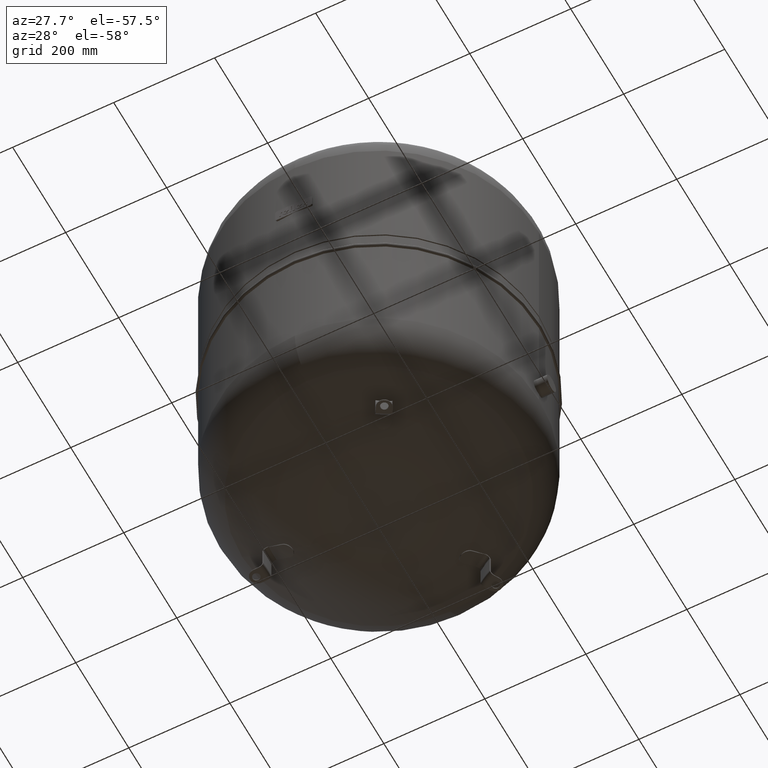
[diagram: clean part render]
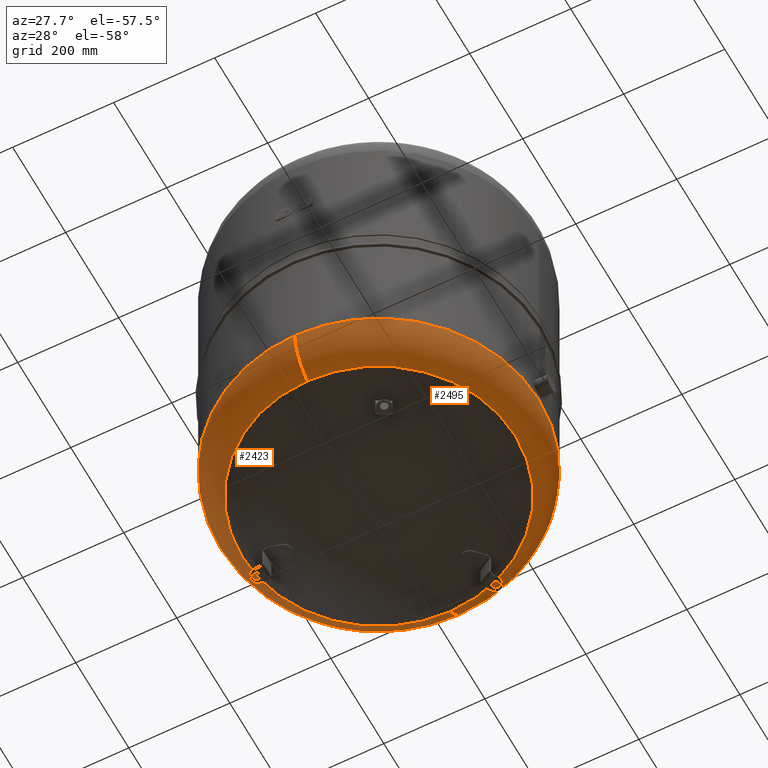
[diagram: same view with one multi-face feature highlighted, each face labeled with its STEP entity id]
A machine part, auxiliary view. The highlighted faces form ONE feature: a constant-radius fillet chain: 2 tangent blend faces with common blend radius 99 mm. The faces share edges in the B-rep.
Their STEP definitions:
[1] entity #2495 (Torus):
#2345=CARTESIAN_POINT('',(317.0,9.105293E-015,169.75944937262864));
#2346=VERTEX_POINT('',#2345);
#2353=CARTESIAN_POINT('',(-3.882002E-014,317.0,169.75944937262869));
#2354=VERTEX_POINT('',#2353);
#2355=CARTESIAN_POINT('',(-1.556097E-014,-2.971473E-014,169.75944937262864));
#2356=DIRECTION('',(0.0,0.0,1.0));
#2357=DIRECTION('',(-1.0,0.0,0.0));
#2358=AXIS2_PLACEMENT_3D('',#2355,#2356,#2357);
#2359=CIRCLE('',#2358,317.00000000000006);
#2360=EDGE_CURVE('',#2346,#2354,#2359,.T.);
#2377=CARTESIAN_POINT('',(6.444462E-030,-317.00000000000011,169.75944937262858));
#2378=VERTEX_POINT('',#2377);
#2379=CARTESIAN_POINT('',(8.065826E-015,-270.63902439024383,85.91356031870238));
#2380=VERTEX_POINT('',#2379);
#2381=CARTESIAN_POINT('',(0.0,-218.00000000000003,169.75944937262864));
#2382=DIRECTION('',(1.0,0.0,0.0));
#2383=DIRECTION('',(0.0,-1.0,0.0));
#2384=AXIS2_PLACEMENT_3D('',#2381,#2382,#2383);
#2385=CIRCLE('',#2384,99.0);
#2386=EDGE_CURVE('',#2378,#2380,#2385,.T.);
#2396=CARTESIAN_POINT('',(-2.507680E-014,270.63902439024383,85.91356031870248));
#2397=VERTEX_POINT('',#2396);
#2398=CARTESIAN_POINT('',(-2.669642E-014,217.99999999999997,169.75944937262869));
#2399=DIRECTION('',(-1.0,0.0,0.0));
#2400=DIRECTION('',(0.0,1.0,0.0));
#2401=AXIS2_PLACEMENT_3D('',#2398,#2399,#2400);
#2402=CIRCLE('',#2401,99.0);
#2403=EDGE_CURVE('',#2354,#2397,#2402,.T.);
#2429=CARTESIAN_POINT('',(270.63902439024383,-9.350178E-014,85.91356031870248));
#2430=VERTEX_POINT('',#2429);
#2440=CARTESIAN_POINT('',(-7.495146E-015,-1.431249E-014,85.913560318702437));
#2441=DIRECTION('',(0.0,0.0,1.0));
#2442=DIRECTION('',(-1.0,0.0,0.0));
#2443=AXIS2_PLACEMENT_3D('',#2440,#2441,#2442);
#2444=CIRCLE('',#2443,270.63902439024383);
#2445=EDGE_CURVE('',#2380,#2430,#2444,.T.);
#2466=CARTESIAN_POINT('',(-7.495146E-015,-1.431249E-014,85.913560318702437));
#2467=DIRECTION('',(0.0,0.0,1.0));
#2468=DIRECTION('',(-1.0,0.0,0.0));
#2469=AXIS2_PLACEMENT_3D('',#2466,#2467,#2468);
#2470=CIRCLE('',#2469,270.63902439024383);
#2471=EDGE_CURVE('',#2430,#2397,#2470,.T.);
#2476=CARTESIAN_POINT('',(0.0,-2.971473E-014,169.75944937262867));
#2477=DIRECTION('',(-9.619823E-017,-1.836970E-016,1.0));
#2478=DIRECTION('',(0.0,-1.0,0.0));
#2479=AXIS2_PLACEMENT_3D('',#2476,#2477,#2478);
#2480=TOROIDAL_SURFACE('',#2479,218.0,99.0);
#2481=ORIENTED_EDGE('',*,*,#2386,.T.);
#2482=ORIENTED_EDGE('',*,*,#2445,.T.);
#2483=ORIENTED_EDGE('',*,*,#2471,.T.);
#2484=ORIENTED_EDGE('',*,*,#2403,.F.);
#2485=ORIENTED_EDGE('',*,*,#2360,.F.);
#2486=CARTESIAN_POINT('',(-1.556097E-014,-2.971473E-014,169.75944937262864));
#2487=DIRECTION('',(0.0,0.0,1.0));
#2488=DIRECTION('',(-1.0,0.0,0.0));
#2489=AXIS2_PLACEMENT_3D('',#2486,#2487,#2488);
#2490=CIRCLE('',#2489,317.00000000000006);
#2491=EDGE_CURVE('',#2378,#2346,#2490,.T.);
#2492=ORIENTED_EDGE('',*,*,#2491,.F.);
#2493=EDGE_LOOP('',(#2481,#2482,#2483,#2484,#2485,#2492));
#2494=FACE_OUTER_BOUND('',#2493,.T.);
#2495=ADVANCED_FACE('',(#2494),#2480,.T.);
[2] entity #2423 (Torus):
#2328=CARTESIAN_POINT('',(-317.00000000000006,-2.971473E-014,169.75944937262858));
#2329=VERTEX_POINT('',#2328);
#2353=CARTESIAN_POINT('',(-3.882002E-014,317.0,169.75944937262869));
#2354=VERTEX_POINT('',#2353);
#2362=CARTESIAN_POINT('',(-1.556097E-014,-2.971473E-014,169.75944937262864));
#2363=DIRECTION('',(0.0,0.0,1.0));
#2364=DIRECTION('',(-1.0,0.0,0.0));
#2365=AXIS2_PLACEMENT_3D('',#2362,#2363,#2364);
#2366=CIRCLE('',#2365,317.00000000000006);
#2367=EDGE_CURVE('',#2354,#2329,#2366,.T.);
#2372=CARTESIAN_POINT('',(0.0,-2.971473E-014,169.75944937262867));
#2373=DIRECTION('',(-9.619823E-017,-1.836970E-016,1.0));
#2374=DIRECTION('',(0.0,-1.0,0.0));
#2375=AXIS2_PLACEMENT_3D('',#2372,#2373,#2374);
#2376=TOROIDAL_SURFACE('',#2375,218.0,99.0);
#2377=CARTESIAN_POINT('',(6.444462E-030,-317.00000000000011,169.75944937262858));
#2378=VERTEX_POINT('',#2377);
#2379=CARTESIAN_POINT('',(8.065826E-015,-270.63902439024383,85.91356031870238));
#2380=VERTEX_POINT('',#2379);
#2381=CARTESIAN_POINT('',(0.0,-218.00000000000003,169.75944937262864));
#2382=DIRECTION('',(1.0,0.0,0.0));
#2383=DIRECTION('',(0.0,-1.0,0.0));
#2384=AXIS2_PLACEMENT_3D('',#2381,#2382,#2383);
#2385=CIRCLE('',#2384,99.0);
#2386=EDGE_CURVE('',#2378,#2380,#2385,.T.);
#2387=ORIENTED_EDGE('',*,*,#2386,.F.);
#2388=CARTESIAN_POINT('',(-1.556097E-014,-2.971473E-014,169.75944937262864));
#2389=DIRECTION('',(0.0,0.0,1.0));
#2390=DIRECTION('',(-1.0,0.0,0.0));
#2391=AXIS2_PLACEMENT_3D('',#2388,#2389,#2390);
#2392=CIRCLE('',#2391,317.00000000000006);
#2393=EDGE_CURVE('',#2329,#2378,#2392,.T.);
#2394=ORIENTED_EDGE('',*,*,#2393,.F.);
#2395=ORIENTED_EDGE('',*,*,#2367,.F.);
#2396=CARTESIAN_POINT('',(-2.507680E-014,270.63902439024383,85.91356031870248));
#2397=VERTEX_POINT('',#2396);
#2398=CARTESIAN_POINT('',(-2.669642E-014,217.99999999999997,169.75944937262869));
#2399=DIRECTION('',(-1.0,0.0,0.0));
#2400=DIRECTION('',(0.0,1.0,0.0));
#2401=AXIS2_PLACEMENT_3D('',#2398,#2399,#2400);
#2402=CIRCLE('',#2401,99.0);
#2403=EDGE_CURVE('',#2354,#2397,#2402,.T.);
#2404=ORIENTED_EDGE('',*,*,#2403,.T.);
#2405=CARTESIAN_POINT('',(-270.63902439024383,-1.431249E-014,85.913560318702423));
#2406=VERTEX_POINT('',#2405);
#2407=CARTESIAN_POINT('',(-7.495146E-015,-1.431249E-014,85.913560318702437));
#2408=DIRECTION('',(0.0,0.0,1.0));
#2409=DIRECTION('',(-1.0,0.0,0.0));
#2410=AXIS2_PLACEMENT_3D('',#2407,#2408,#2409);
#2411=CIRCLE('',#2410,270.63902439024383);
#2412=EDGE_CURVE('',#2397,#2406,#2411,.T.);
#2413=ORIENTED_EDGE('',*,*,#2412,.T.);
#2414=CARTESIAN_POINT('',(-7.495146E-015,-1.431249E-014,85.913560318702437));
#2415=DIRECTION('',(0.0,0.0,1.0));
#2416=DIRECTION('',(-1.0,0.0,0.0));
#2417=AXIS2_PLACEMENT_3D('',#2414,#2415,#2416);
#2418=CIRCLE('',#2417,270.63902439024383);
#2419=EDGE_CURVE('',#2406,#2380,#2418,.T.);
#2420=ORIENTED_EDGE('',*,*,#2419,.T.);
#2421=EDGE_LOOP('',(#2387,#2394,#2395,#2404,#2413,#2420));
#2422=FACE_OUTER_BOUND('',#2421,.T.);
#2423=ADVANCED_FACE('',(#2422),#2376,.T.);